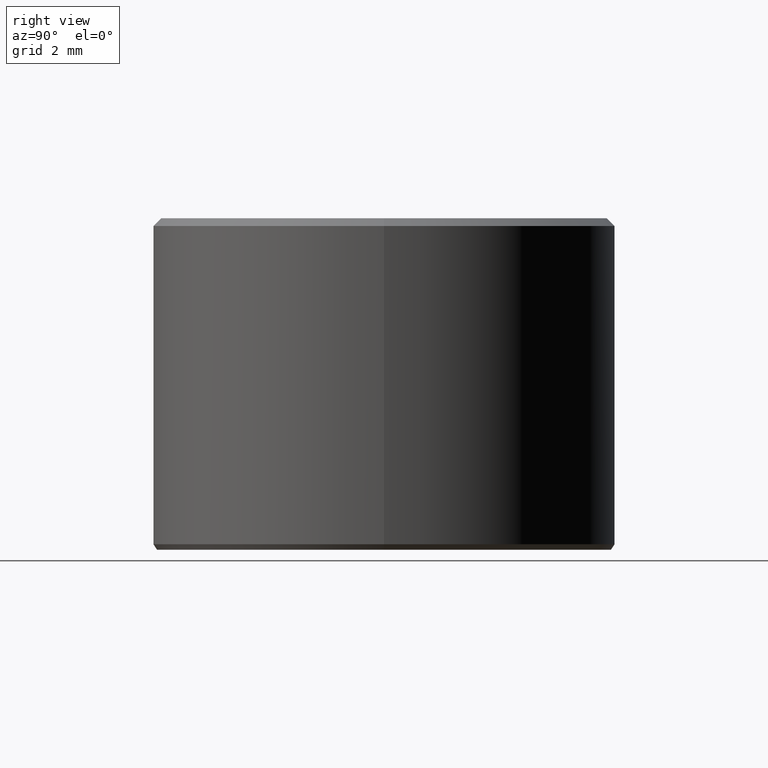
[diagram: clean part render]
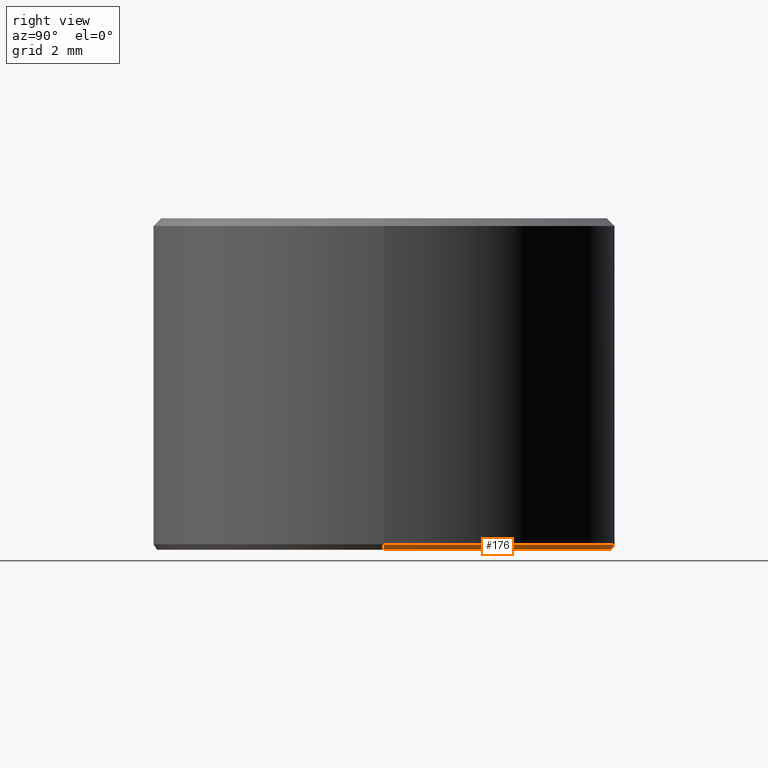
[diagram: same view with one face highlighted and labeled with its STEP entity id]
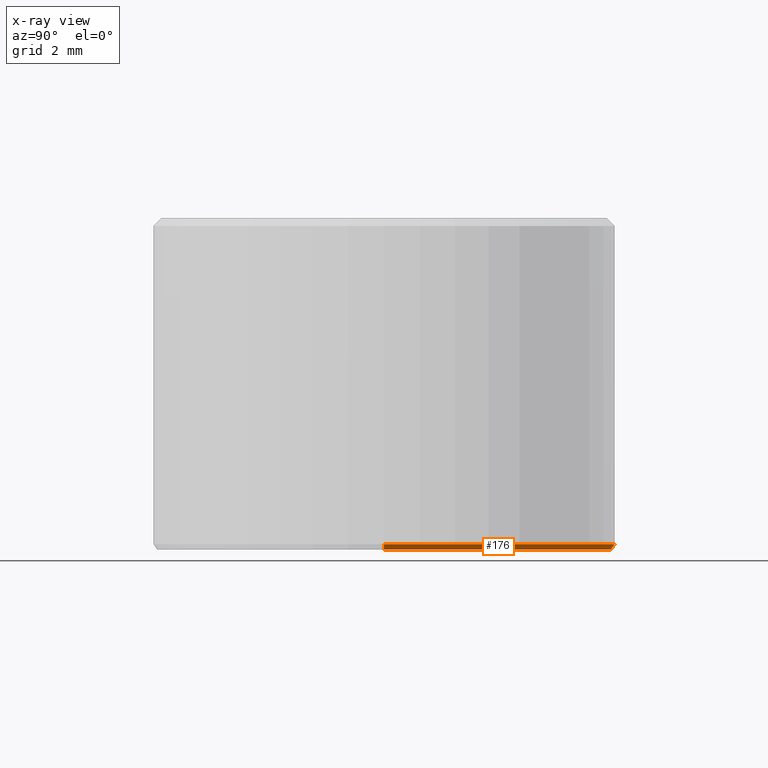
[diagram: x-ray of the same camera — body ghosted, the highlighted face saturated]
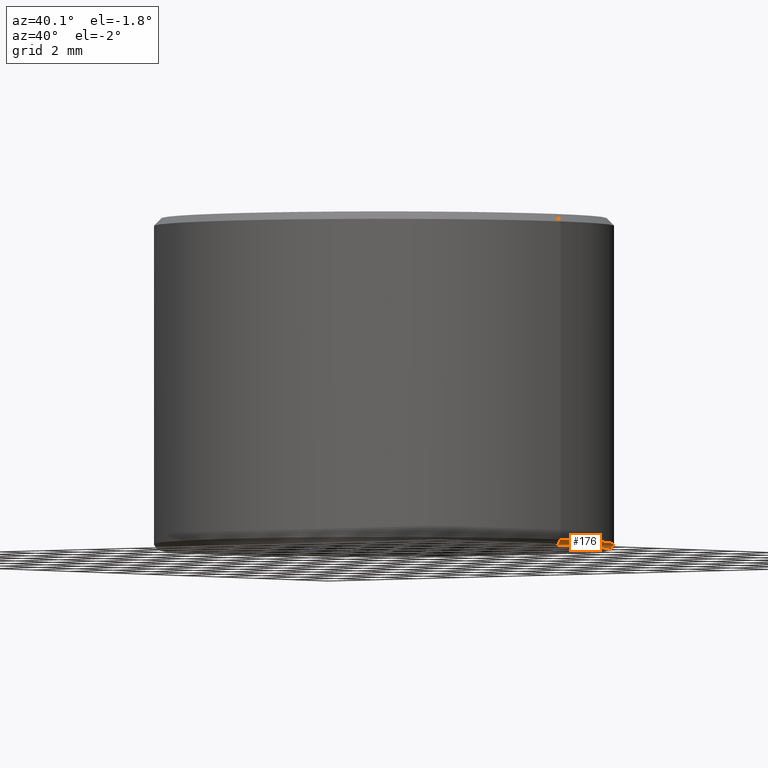
[diagram: same view with one face highlighted and labeled with its STEP entity id]
A machine part, right view. The second image highlights one B-rep face of the part: STEP entity #176.
The next image is the same camera in x-ray: the body ghosted, the highlighted face saturated — about 0% of this face is hidden behind the body in this view.
A second angle (auxiliary view) of the same face is appended — the face is thin or edge-on in the first view.
In plain terms, the highlighted conical surface has half-angle 33.033 deg.
Its self-contained STEP definition (entity closure, byte-faithful):
#9 = CARTESIAN_POINT ( 'NONE',  ( 0.0000000000000000000, 0.0000000000000000000, 0.1893181058988668800 ) ) ;
#11 = CARTESIAN_POINT ( 'NONE',  ( 0.0000000000000000000, 0.0000000000000000000, -1.942890293094023900E-013 ) ) ;
#14 = CARTESIAN_POINT ( 'NONE',  ( 0.0000000000000000000, 0.0000000000000000000, -1.942890293094023900E-013 ) ) ;
#25 = DIRECTION ( 'NONE',  ( 0.5451180342252927000, 0.0000000000000000000, 0.8383593076732389600 ) ) ;
#26 = CARTESIAN_POINT ( 'NONE',  ( 8.000000000000000000, 0.0000000000000000000, 0.1893181058988668800 ) ) ;
#38 = CARTESIAN_POINT ( 'NONE',  ( -7.876901570977517000, 9.646422296096375300E-016, -1.942890293094023900E-013 ) ) ;
#40 = DIRECTION ( 'NONE',  ( -0.0000000000000000000, -0.0000000000000000000, 1.000000000000000000 ) ) ;
#47 = DIRECTION ( 'NONE',  ( -0.0000000000000000000, -0.0000000000000000000, 1.000000000000000000 ) ) ;
#55 = ORIENTED_EDGE ( 'NONE', *, *, #325, .T. ) ;
#57 = VECTOR ( 'NONE', #25, 1000.000000000000000 ) ;
#76 = VERTEX_POINT ( 'NONE', #343 ) ;
#81 = ORIENTED_EDGE ( 'NONE', *, *, #181, .F. ) ;
#91 = VERTEX_POINT ( 'NONE', #26 ) ;
#96 = DIRECTION ( 'NONE',  ( 1.000000000000000000, 0.0000000000000000000, 0.0000000000000000000 ) ) ;
#100 = EDGE_CURVE ( 'NONE', #156, #76, #335, .T. ) ;
#101 = DIRECTION ( 'NONE',  ( -0.0000000000000000000, -0.0000000000000000000, 1.000000000000000000 ) ) ;
#105 = DIRECTION ( 'NONE',  ( 1.000000000000000000, 0.0000000000000000000, 0.0000000000000000000 ) ) ;
#108 = CIRCLE ( 'NONE', #173, 7.876901570977517000 ) ;
#129 = DIRECTION ( 'NONE',  ( 1.000000000000000000, 0.0000000000000000000, 0.0000000000000000000 ) ) ;
#136 = LINE ( 'NONE', #166, #57 ) ;
#137 = VECTOR ( 'NONE', #315, 1000.000000000000000 ) ;
#141 = EDGE_LOOP ( 'NONE', ( #55, #258, #81, #229 ) ) ;
#142 = FACE_OUTER_BOUND ( 'NONE', #141, .T. ) ;
#156 = VERTEX_POINT ( 'NONE', #285 ) ;
#166 = CARTESIAN_POINT ( 'NONE',  ( 7.876901570977517000, 0.0000000000000000000, -1.942890293094023900E-013 ) ) ;
#173 = AXIS2_PLACEMENT_3D ( 'NONE', #14, #47, #105 ) ;
#176 = ADVANCED_FACE ( 'NONE', ( #142 ), #274, .T. ) ;
#181 = EDGE_CURVE ( 'NONE', #91, #76, #250, .T. ) ;
#183 = VERTEX_POINT ( 'NONE', #314 ) ;
#212 = AXIS2_PLACEMENT_3D ( 'NONE', #9, #40, #129 ) ;
#229 = ORIENTED_EDGE ( 'NONE', *, *, #262, .F. ) ;
#250 = CIRCLE ( 'NONE', #212, 8.000000000000000000 ) ;
#253 = AXIS2_PLACEMENT_3D ( 'NONE', #11, #101, #96 ) ;
#258 = ORIENTED_EDGE ( 'NONE', *, *, #100, .T. ) ;
#262 = EDGE_CURVE ( 'NONE', #183, #91, #136, .T. ) ;
#274 = CONICAL_SURFACE ( 'NONE', #253, 7.876901570977517000, 0.5765299002231976100 ) ;
#285 = CARTESIAN_POINT ( 'NONE',  ( -7.876901570977517000, 9.721798344637599500E-016, -1.942890293094023900E-013 ) ) ;
#314 = CARTESIAN_POINT ( 'NONE',  ( 7.876901570977517000, 0.0000000000000000000, -1.942890293094023900E-013 ) ) ;
#315 = DIRECTION ( 'NONE',  ( -0.5451180342252927000, 6.675770557715020500E-017, 0.8383593076732389600 ) ) ;
#325 = EDGE_CURVE ( 'NONE', #183, #156, #108, .T. ) ;
#335 = LINE ( 'NONE', #38, #137 ) ;
#343 = CARTESIAN_POINT ( 'NONE',  ( -8.000000000000000000, 9.797174393178827600E-016, 0.1893181058988668800 ) ) ;